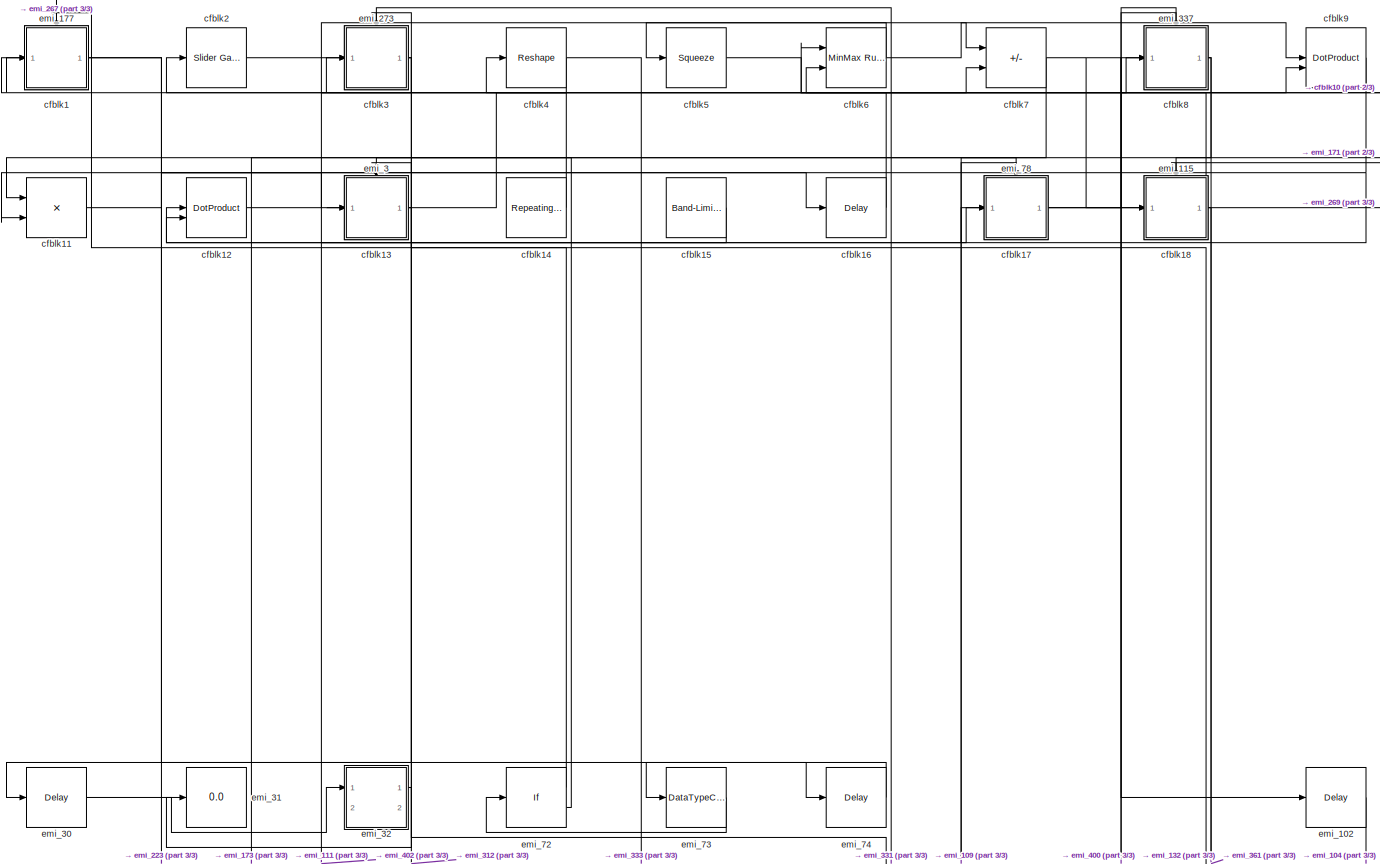
[diagram: root canvas - part 1/3, full width, top band]
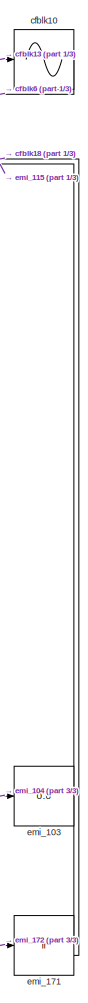
[diagram: root canvas - part 2/3, middle right region]
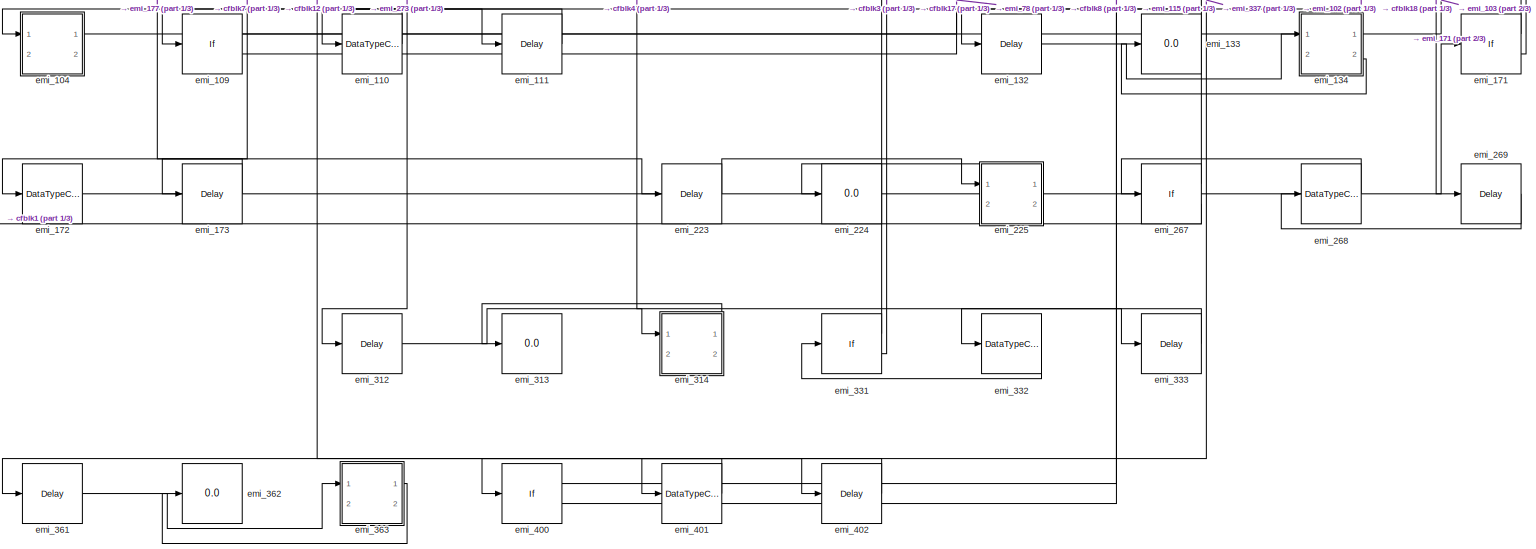
[diagram: root canvas - part 3/3, full width, bottom band]
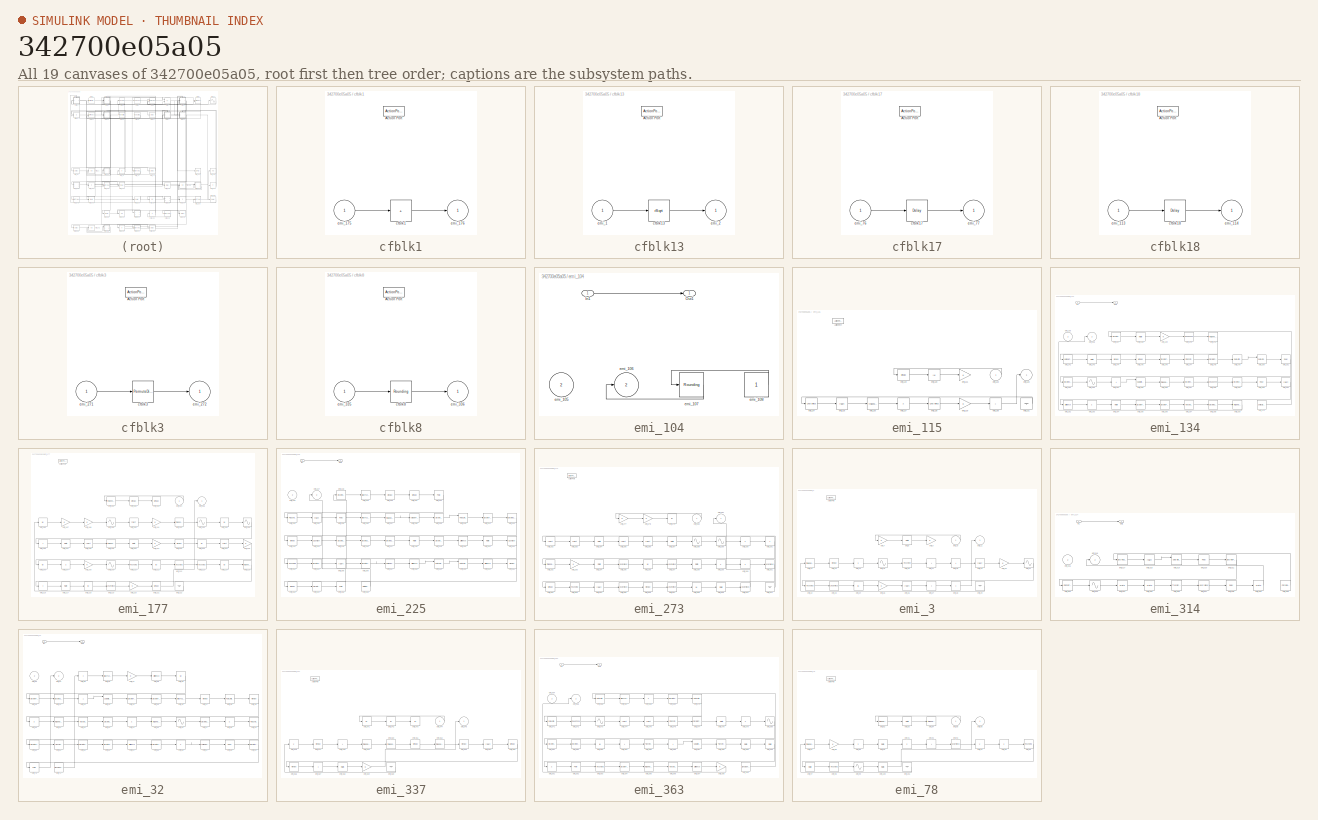
[diagram: thumbnail index - all 19 canvases of the model, root first then tree order]
MODEL slx_342700e05a05
KIND model
CONFIG AbsTol = auto
CONFIG EnableMultiTasking = off
CONFIG FixedStep = auto
CONFIG MaxStep = auto
CONFIG MinStep = auto
CONFIG RelTol = 1e-3
CONFIG SampleTimeConstraint = Unconstrained
CONFIG SolverName = VariableStepAuto
CONFIG StartTime = 0.0
CONFIG StopTime = 10.0
BLOCK [SubSystem] cfblk1
  Ports = [1, 1, 0, 0, 0, 0, 0, 1]
  RequestExecContextInheritance = off
  TreatAsAtomicUnit = on
BLOCK [ActionPort] cfblk1/Action Port
  ActionPortLabel = else
BLOCK [Sum] cfblk1/cfblk1
  IconShape = rectangular
  Inputs = +
  Ports = [1, 1]
BLOCK [Inport] cfblk1/emi_175
BLOCK [Outport] cfblk1/emi_176
BLOCK [Sin] cfblk10
  Ports = [1, 1]
  SampleTime = 0
  TimeSource = Use external signal
BLOCK [Product] cfblk11
  Ports = [2, 1]
BLOCK [DotProduct] cfblk12
  OutDataTypeStr = Inherit: Inherit via internal rule
BLOCK [SubSystem] cfblk13
  Ports = [1, 1, 0, 0, 0, 0, 0, 1]
  RequestExecContextInheritance = off
  TreatAsAtomicUnit = on
BLOCK [ActionPort] cfblk13/Action Port
  ActionPortLabel = else
BLOCK [Sqrt] cfblk13/cfblk13
  AlgorithmType = Newton-Raphson
  Operator = rSqrt
BLOCK [Inport] cfblk13/emi_1
BLOCK [Outport] cfblk13/emi_2
BLOCK [Reference] cfblk14  REF=simulink/Sources/Repeating
Sequence
Stair
  Ports = [0, 1]
  SourceBlock = simulink/Sources/Repeating\nSequence\nStair
  SourceProductBaseCode = SL
  SourceType = Repeating Sequence Stair
BLOCK [Reference] cfblk15  REF=simulink/Sources/Band-Limited
White Noise
  Ports = [0, 1]
  SourceBlock = simulink/Sources/Band-Limited\nWhite Noise
  SourceProductBaseCode = SL
  SourceType = Band-Limited White Noise.
BLOCK [Delay] cfblk16
  InputPortMap = u0
  Ports = [1, 1]
  SampleTime = 1
BLOCK [SubSystem] cfblk17
  Ports = [1, 1, 0, 0, 0, 0, 0, 1]
  RequestExecContextInheritance = off
  TreatAsAtomicUnit = on
BLOCK [ActionPort] cfblk17/Action Port
  ActionPortLabel = else
BLOCK [Delay] cfblk17/cfblk17
  InputPortMap = u0
  Ports = [1, 1]
  SampleTime = 1
BLOCK [Inport] cfblk17/emi_76
BLOCK [Outport] cfblk17/emi_77
BLOCK [SubSystem] cfblk18
  Ports = [1, 1, 0, 0, 0, 0, 0, 1]
  RequestExecContextInheritance = off
  TreatAsAtomicUnit = on
BLOCK [ActionPort] cfblk18/Action Port
  ActionPortLabel = else
BLOCK [Delay] cfblk18/cfblk18
  InputPortMap = u0
  Ports = [1, 1]
  SampleTime = 1
BLOCK [Inport] cfblk18/emi_113
BLOCK [Outport] cfblk18/emi_114
BLOCK [Reference] cfblk2  REF=simulink/Math
Operations/Slider
Gain
  Ports = [1, 1]
  SourceBlock = simulink/Math\nOperations/Slider\nGain
  SourceProductBaseCode = SL
  SourceType = Slider Gain
BLOCK [SubSystem] cfblk3
  Ports = [1, 1, 0, 0, 0, 0, 0, 1]
  RequestExecContextInheritance = off
  TreatAsAtomicUnit = on
BLOCK [ActionPort] cfblk3/Action Port
  ActionPortLabel = else
BLOCK [PermuteDimensions] cfblk3/cfblk3
BLOCK [Inport] cfblk3/emi_271
BLOCK [Outport] cfblk3/emi_272
BLOCK [Reshape] cfblk4
  Ports = [1, 1]
BLOCK [Squeeze] cfblk5
BLOCK [Reference] cfblk6  REF=simulink/Math
Operations/MinMax
Running
Resettable
  Ports = [2, 1]
  SourceBlock = simulink/Math\nOperations/MinMax\nRunning\nResettable
  SourceProductBaseCode = SL
  SourceType = MinMax Running Resettable
BLOCK [Sum] cfblk7
  IconShape = rectangular
  Inputs = +-
  Ports = [2, 1]
BLOCK [SubSystem] cfblk8
  Ports = [1, 1, 0, 0, 0, 0, 0, 1]
  RequestExecContextInheritance = off
  TreatAsAtomicUnit = on
BLOCK [ActionPort] cfblk8/Action Port
  ActionPortLabel = else
BLOCK [Rounding] cfblk8/cfblk8
BLOCK [Inport] cfblk8/emi_335
BLOCK [Outport] cfblk8/emi_336
BLOCK [DotProduct] cfblk9
  OutDataTypeStr = Inherit: Inherit via internal rule
BLOCK [Delay] emi_102
  InputPortMap = u0
  Ports = [1, 1]
  SampleTime = 1
BLOCK [Display] emi_103
  Decimation = 1
  Ports = [1]
BLOCK [SubSystem] emi_104
  Ports = [2, 2]
  RequestExecContextInheritance = off
BLOCK [Inport] emi_104/In1
BLOCK [Outport] emi_104/Out1
BLOCK [Inport] emi_104/emi_105
  Port = 2
BLOCK [Outport] emi_104/emi_106
  Port = 2
BLOCK [Rounding] emi_104/emi_107
BLOCK [Constant] emi_104/emi_108
BLOCK [If] emi_109
  IfExpression = 0 > u1
  Ports = [1, 2]
  SampleTime = 1
BLOCK [DataTypeConversion] emi_110
  OutDataTypeStr = double
  RndMeth = Floor
  SaturateOnIntegerOverflow = off
BLOCK [Delay] emi_111
  InitialCondition = 0
  InputPortMap = u0
  Ports = [1, 1]
BLOCK [SubSystem] emi_115
  Ports = [1, 1, 0, 0, 0, 0, 0, 1]
  RequestExecContextInheritance = off
  TreatAsAtomicUnit = on
BLOCK [ActionPort] emi_115/Action Port
  ActionPortLabel = if(-8.569840e+08 > u1)
BLOCK [MinMax] emi_115/emi_119
  Ports = [1, 1]
  SampleTime = 1
BLOCK [Abs] emi_115/emi_120
  SampleTime = 1
  SaturateOnIntegerOverflow = off
BLOCK [Gain] emi_115/emi_121
  SampleTime = 1
BLOCK [Inport] emi_115/emi_122
BLOCK [Outport] emi_115/emi_123
BLOCK [UnaryMinus] emi_115/emi_124
BLOCK [Sqrt] emi_115/emi_125
  Operator = rSqrt
BLOCK [Trigonometry] emi_115/emi_126
  Ports = [1, 1]
BLOCK [Product] emi_115/emi_127
  Inputs = *
  Ports = [1, 1]
BLOCK [UnaryMinus] emi_115/emi_128
BLOCK [Gain] emi_115/emi_129
BLOCK [Sum] emi_115/emi_130
  IconShape = rectangular
  Inputs = +
  Ports = [1, 1]
BLOCK [Ground] emi_115/emi_131
BLOCK [Delay] emi_132
  InputPortMap = u0
  Ports = [1, 1]
  SampleTime = 1
BLOCK [Display] emi_133
  Decimation = 1
  Ports = [1]
BLOCK [SubSystem] emi_134
  Ports = [2, 2]
  RequestExecContextInheritance = off
BLOCK [Inport] emi_134/In1
BLOCK [Outport] emi_134/Out1
BLOCK [Inport] emi_134/emi_135
  Port = 2
BLOCK [Outport] emi_134/emi_136
  Port = 2
BLOCK [DiscreteIntegrator] emi_134/emi_137
  ICPrevOutput = DiscIntNeverNeededParam
  ICPrevScaledInput = DiscIntNeverNeededParam
  InitialConditionSetting = Auto
  Ports = [1, 1]
  SampleTime = -1
BLOCK [Math] emi_134/emi_138
  Ports = [1, 1]
BLOCK [Gain] emi_134/emi_139
BLOCK [DeadZone] emi_134/emi_140
BLOCK [Trigonometry] emi_134/emi_141
  Ports = [1, 1]
BLOCK [VariablePulseGenerator] emi_134/emi_142
  SampleTime = 0.1
BLOCK [Math] emi_134/emi_143
  Ports = [1, 1]
BLOCK [MinMax] emi_134/emi_144
  Ports = [1, 1]
BLOCK [MinMax] emi_134/emi_145
  Ports = [1, 1]
BLOCK [DiscreteFilter] emi_134/emi_146
  InputPortMap = u0
  Ports = [1, 1]
BLOCK [Reference] emi_134/emi_147  REF=slpidlib/PID Controller
  Ports = [1, 1]
  SourceBlock = slpidlib/PID Controller
  SourceProductBaseCode = SL
  SourceType = PID 1dof
BLOCK [DiscreteZeroPole] emi_134/emi_148
  Gain = 1
  Poles = [0 0.5]
  SampleTime = -1
BLOCK [RateLimiter] emi_134/emi_149
  SampleTimeMode = inherited
BLOCK [Reference] emi_134/emi_150  REF=simulink/Discontinuities/Rate Limiter
Dynamic
  Ports = [3, 1]
  SourceBlock = simulink/Discontinuities/Rate Limiter\nDynamic
  SourceProductBaseCode = SL
  SourceType = Rate Limiter Dynamic
BLOCK [Relay] emi_134/emi_151
BLOCK [DiscreteStateSpace] emi_134/emi_152
  SampleTime = -1
BLOCK [Sin] emi_134/emi_153
  Ports = [1, 1]
  SampleTime = 0
  TimeSource = Use external signal
BLOCK [Sum] emi_134/emi_154
  IconShape = rectangular
  Inputs = +
  Ports = [1, 1]
BLOCK [Reference] emi_134/emi_155  REF=simulink/Discontinuities/Saturation
Dynamic
  Ports = [3, 1]
  SourceBlock = simulink/Discontinuities/Saturation\nDynamic
  SourceProductBaseCode = SL
  SourceType = Saturation Dynamic
BLOCK [Trigonometry] emi_134/emi_156
  Ports = [1, 1]
BLOCK [DiscreteStateSpace] emi_134/emi_157
  SampleTime = -1
BLOCK [DeadZone] emi_134/emi_158
BLOCK [DiscreteZeroPole] emi_134/emi_159
  Gain = 1
  Poles = [0 0.5]
  SampleTime = -1
BLOCK [Relay] emi_134/emi_160
BLOCK [Sqrt] emi_134/emi_161
  Operator = rSqrt
BLOCK [Reference] emi_134/emi_162  REF=simulink/Discrete/Difference
  Ports = [1, 1]
  SourceBlock = simulink/Discrete/Difference
  SourceProductBaseCode = SL
  SourceType = Difference
BLOCK [Product] emi_134/emi_163
  Inputs = *
  Ports = [1, 1]
BLOCK [Math] emi_134/emi_164
  Ports = [1, 1]
BLOCK [DiscreteFir] emi_134/emi_165
  InputPortMap = u0
  OutputPortMap = o0
  Ports = [1, 1]
BLOCK [DiscreteFilter] emi_134/emi_166
  InputPortMap = u0
  Ports = [1, 1]
BLOCK [Reference] emi_134/emi_167  REF=simulink/Discrete/Transfer Fcn
First Order
  Ports = [1, 1]
  SourceBlock = simulink/Discrete/Transfer Fcn\nFirst Order
  SourceProductBaseCode = SL
  SourceType = First Order Transfer Fcn
BLOCK [DiscreteZeroPole] emi_134/emi_168
  Gain = 1
  Poles = [0 0.5]
  SampleTime = -1
BLOCK [Trigonometry] emi_134/emi_169
  Ports = [1, 1]
BLOCK [Reference] emi_134/emi_170  REF=simulink/Sources/Chirp Signal
  Ports = [0, 1]
  SourceBlock = simulink/Sources/Chirp Signal
  SourceProductBaseCode = SL
  SourceType = chirp
BLOCK [If] emi_171
  IfExpression = -8.569840e+08 > u1
  Ports = [1, 2]
  SampleTime = 1
BLOCK [DataTypeConversion] emi_172
  OutDataTypeStr = double
  RndMeth = Floor
  SaturateOnIntegerOverflow = off
BLOCK [Delay] emi_173
  InitialCondition = -428491998.3632
  InputPortMap = u0
  Ports = [1, 1]
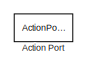
[diagram: emi_177 - part 1/2, top left region]
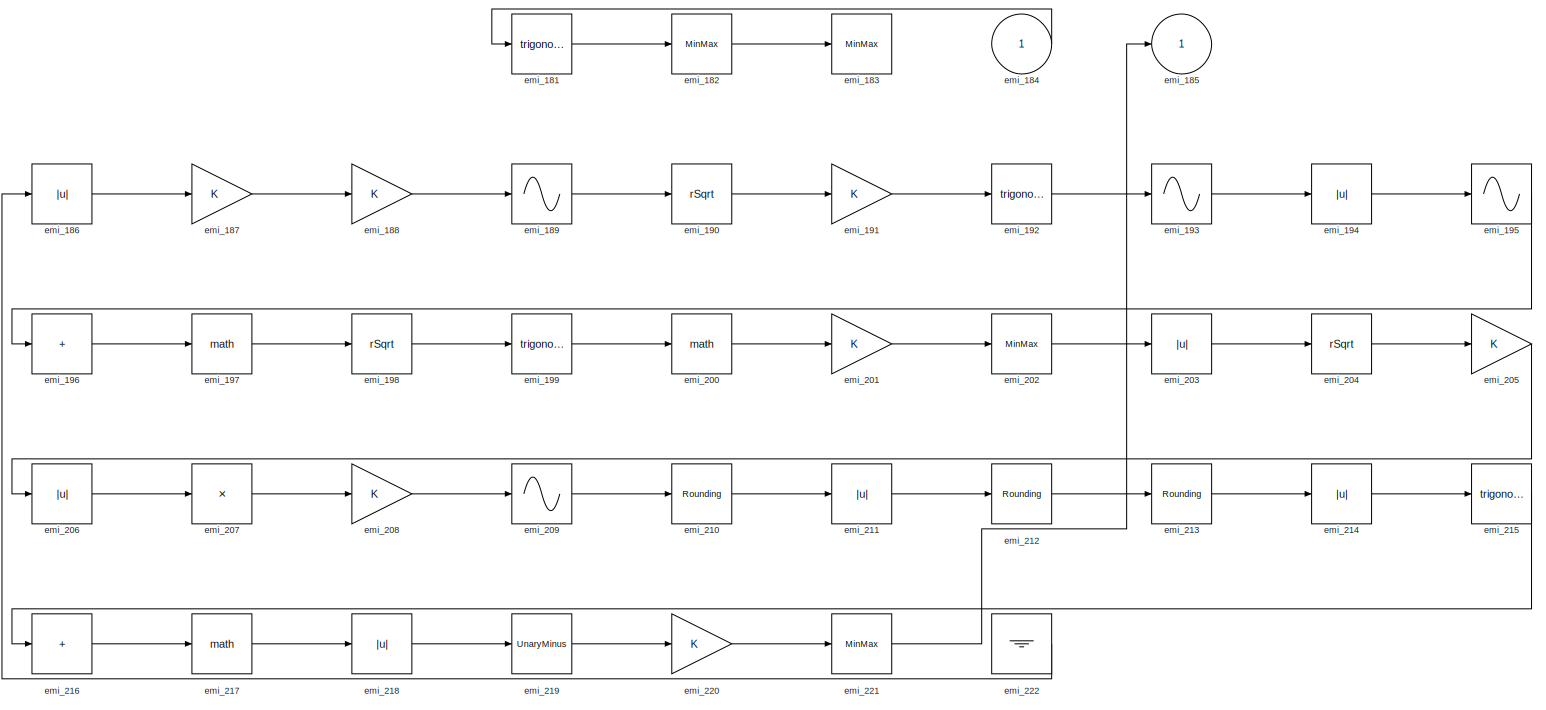
[diagram: emi_177 - part 2/2, full width, middle band]
BLOCK [SubSystem] emi_177
  Ports = [1, 1, 0, 0, 0, 0, 0, 1]
  RequestExecContextInheritance = off
  TreatAsAtomicUnit = on
BLOCK [ActionPort] emi_177/Action Port
  ActionPortLabel = if(-8.569840e+08 > u1)
BLOCK [Trigonometry] emi_177/emi_181
  Ports = [1, 1]
BLOCK [MinMax] emi_177/emi_182
  Ports = [1, 1]
BLOCK [MinMax] emi_177/emi_183
  Ports = [1, 1]
BLOCK [Inport] emi_177/emi_184
BLOCK [Outport] emi_177/emi_185
BLOCK [Abs] emi_177/emi_186
  SaturateOnIntegerOverflow = off
BLOCK [Gain] emi_177/emi_187
BLOCK [Gain] emi_177/emi_188
BLOCK [Sin] emi_177/emi_189
  Ports = [1, 1]
  SampleTime = 0
  TimeSource = Use external signal
BLOCK [Sqrt] emi_177/emi_190
  Operator = rSqrt
BLOCK [Gain] emi_177/emi_191
BLOCK [Trigonometry] emi_177/emi_192
  Ports = [1, 1]
BLOCK [Sin] emi_177/emi_193
  Ports = [1, 1]
  SampleTime = 0
  TimeSource = Use external signal
BLOCK [Abs] emi_177/emi_194
  SaturateOnIntegerOverflow = off
BLOCK [Sin] emi_177/emi_195
  Ports = [1, 1]
  SampleTime = 0
  TimeSource = Use external signal
BLOCK [Sum] emi_177/emi_196
  IconShape = rectangular
  Inputs = +
  Ports = [1, 1]
BLOCK [Math] emi_177/emi_197
  Ports = [1, 1]
BLOCK [Sqrt] emi_177/emi_198
  Operator = rSqrt
BLOCK [Trigonometry] emi_177/emi_199
  Ports = [1, 1]
BLOCK [Math] emi_177/emi_200
  Ports = [1, 1]
BLOCK [Gain] emi_177/emi_201
BLOCK [MinMax] emi_177/emi_202
  Ports = [1, 1]
BLOCK [Abs] emi_177/emi_203
  SaturateOnIntegerOverflow = off
BLOCK [Sqrt] emi_177/emi_204
  Operator = rSqrt
BLOCK [Gain] emi_177/emi_205
BLOCK [Abs] emi_177/emi_206
  SaturateOnIntegerOverflow = off
BLOCK [Product] emi_177/emi_207
  Inputs = *
  Ports = [1, 1]
BLOCK [Gain] emi_177/emi_208
BLOCK [Sin] emi_177/emi_209
  Ports = [1, 1]
  SampleTime = 0
  TimeSource = Use external signal
BLOCK [Rounding] emi_177/emi_210
BLOCK [Abs] emi_177/emi_211
  SaturateOnIntegerOverflow = off
BLOCK [Rounding] emi_177/emi_212
BLOCK [Rounding] emi_177/emi_213
BLOCK [Abs] emi_177/emi_214
  SaturateOnIntegerOverflow = off
BLOCK [Trigonometry] emi_177/emi_215
  Ports = [1, 1]
BLOCK [Sum] emi_177/emi_216
  IconShape = rectangular
  Inputs = +
  Ports = [1, 1]
BLOCK [Math] emi_177/emi_217
  Ports = [1, 1]
BLOCK [Abs] emi_177/emi_218
  SaturateOnIntegerOverflow = off
BLOCK [UnaryMinus] emi_177/emi_219
BLOCK [Gain] emi_177/emi_220
BLOCK [MinMax] emi_177/emi_221
  Ports = [1, 1]
BLOCK [Ground] emi_177/emi_222
BLOCK [Delay] emi_223
  InputPortMap = u0
  Ports = [1, 1]
BLOCK [Display] emi_224
  Decimation = 1
  Ports = [1]
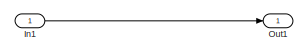
[diagram: emi_225 - part 1/2, top left region]
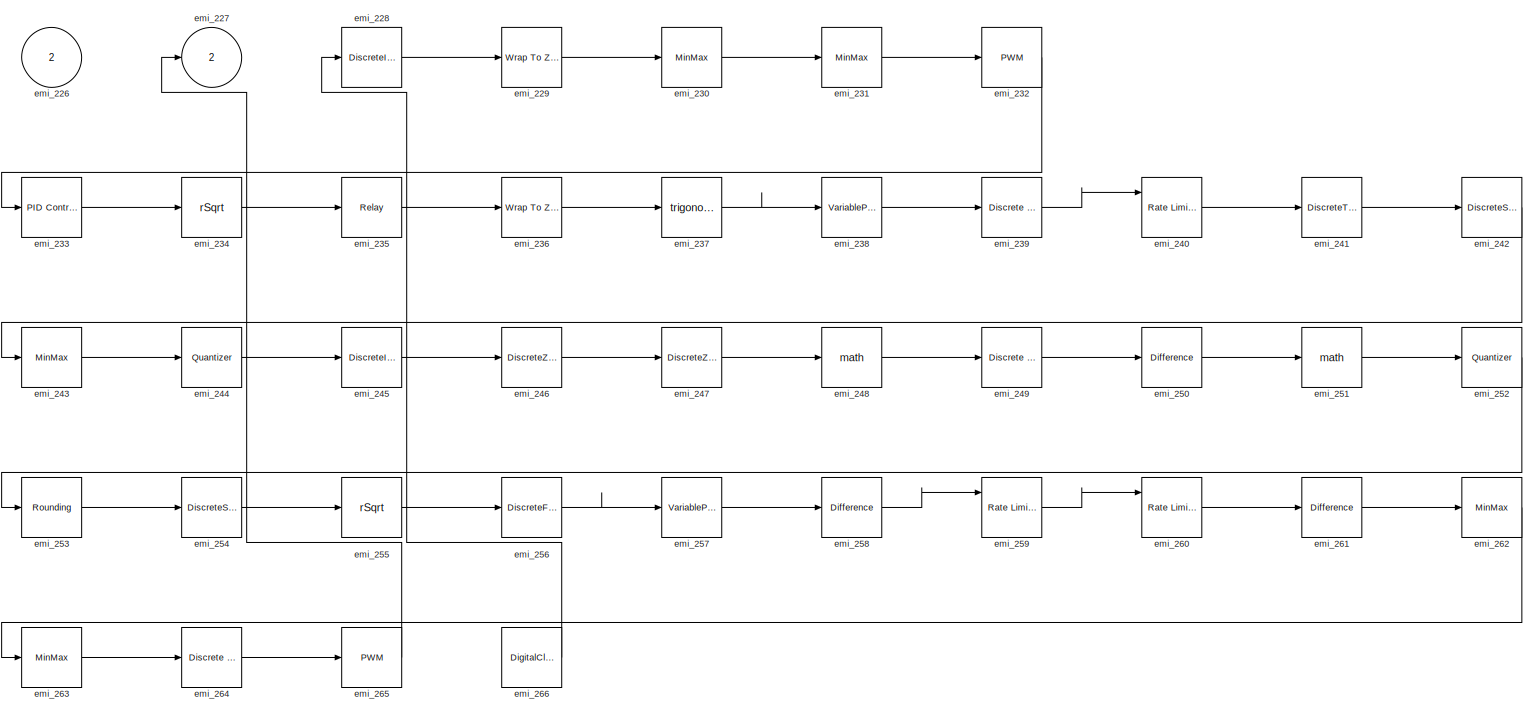
[diagram: emi_225 - part 2/2, most of the canvas]
BLOCK [SubSystem] emi_225
  Ports = [2, 2]
  RequestExecContextInheritance = off
BLOCK [Inport] emi_225/In1
BLOCK [Outport] emi_225/Out1
BLOCK [Inport] emi_225/emi_226
  Port = 2
BLOCK [Outport] emi_225/emi_227
  Port = 2
BLOCK [DiscreteIntegrator] emi_225/emi_228
  ICPrevOutput = DiscIntNeverNeededParam
  ICPrevScaledInput = DiscIntNeverNeededParam
  InitialConditionSetting = Auto
  Ports = [1, 1]
  SampleTime = -1
BLOCK [Reference] emi_225/emi_229  REF=simulink/Discontinuities/Wrap To Zero
  Ports = [1, 1]
  SourceBlock = simulink/Discontinuities/Wrap To Zero
  SourceProductBaseCode = SL
  SourceType = Wrap To Zero
BLOCK [MinMax] emi_225/emi_230
  Ports = [1, 1]
BLOCK [MinMax] emi_225/emi_231
  Ports = [1, 1]
BLOCK [Reference] emi_225/emi_232  REF=simulink/Discontinuities/PWM
  DisableCoverage = on
  Ports = [1, 1]
  SourceBlock = simulink/Discontinuities/PWM
  SourceProductBaseCode = SL
  SourceType = PWM
BLOCK [Reference] emi_225/emi_233  REF=slpidlib/PID Controller
  Ports = [1, 1]
  SourceBlock = slpidlib/PID Controller
  SourceProductBaseCode = SL
  SourceType = PID 1dof
BLOCK [Sqrt] emi_225/emi_234
  Operator = rSqrt
BLOCK [Relay] emi_225/emi_235
BLOCK [Reference] emi_225/emi_236  REF=simulink/Discontinuities/Wrap To Zero
  Ports = [1, 1]
  SourceBlock = simulink/Discontinuities/Wrap To Zero
  SourceProductBaseCode = SL
  SourceType = Wrap To Zero
BLOCK [Trigonometry] emi_225/emi_237
  Ports = [1, 1]
BLOCK [VariablePulseGenerator] emi_225/emi_238
  SampleTime = 0.1
BLOCK [Reference] emi_225/emi_239  REF=simulink/Discrete/Discrete Derivative
  Ports = [1, 1]
  SourceBlock = simulink/Discrete/Discrete Derivative
  SourceProductBaseCode = SL
  SourceType = Discrete Derivative
BLOCK [Reference] emi_225/emi_240  REF=simulink/Discontinuities/Rate Limiter
Dynamic
  Ports = [3, 1]
  SourceBlock = simulink/Discontinuities/Rate Limiter\nDynamic
  SourceProductBaseCode = SL
  SourceType = Rate Limiter Dynamic
BLOCK [DiscreteTransferFcn] emi_225/emi_241
  InputPortMap = u0
  Ports = [1, 1]
BLOCK [DiscreteStateSpace] emi_225/emi_242
  SampleTime = -1
BLOCK [MinMax] emi_225/emi_243
  Ports = [1, 1]
BLOCK [Quantizer] emi_225/emi_244
BLOCK [DiscreteIntegrator] emi_225/emi_245
  ICPrevOutput = DiscIntNeverNeededParam
  ICPrevScaledInput = DiscIntNeverNeededParam
  InitialConditionSetting = Auto
  Ports = [1, 1]
  SampleTime = -1
BLOCK [DiscreteZeroPole] emi_225/emi_246
  Gain = 1
  Poles = [0 0.5]
  SampleTime = -1
BLOCK [DiscreteZeroPole] emi_225/emi_247
  Gain = 1
  Poles = [0 0.5]
  SampleTime = -1
BLOCK [Math] emi_225/emi_248
  Ports = [1, 1]
BLOCK [Reference] emi_225/emi_249  REF=simulink/Discrete/Discrete Derivative
  Ports = [1, 1]
  SourceBlock = simulink/Discrete/Discrete Derivative
  SourceProductBaseCode = SL
  SourceType = Discrete Derivative
BLOCK [Reference] emi_225/emi_250  REF=simulink/Discrete/Difference
  Ports = [1, 1]
  SourceBlock = simulink/Discrete/Difference
  SourceProductBaseCode = SL
  SourceType = Difference
BLOCK [Math] emi_225/emi_251
  Ports = [1, 1]
BLOCK [Quantizer] emi_225/emi_252
BLOCK [Rounding] emi_225/emi_253
BLOCK [DiscreteStateSpace] emi_225/emi_254
  SampleTime = -1
BLOCK [Sqrt] emi_225/emi_255
  Operator = rSqrt
BLOCK [DiscreteFilter] emi_225/emi_256
  InputPortMap = u0
  Ports = [1, 1]
BLOCK [VariablePulseGenerator] emi_225/emi_257
  SampleTime = 0.1
BLOCK [Reference] emi_225/emi_258  REF=simulink/Discrete/Difference
  Ports = [1, 1]
  SourceBlock = simulink/Discrete/Difference
  SourceProductBaseCode = SL
  SourceType = Difference
BLOCK [Reference] emi_225/emi_259  REF=simulink/Discontinuities/Rate Limiter
Dynamic
  Ports = [3, 1]
  SourceBlock = simulink/Discontinuities/Rate Limiter\nDynamic
  SourceProductBaseCode = SL
  SourceType = Rate Limiter Dynamic
BLOCK [Reference] emi_225/emi_260  REF=simulink/Discontinuities/Rate Limiter
Dynamic
  Ports = [3, 1]
  SourceBlock = simulink/Discontinuities/Rate Limiter\nDynamic
  SourceProductBaseCode = SL
  SourceType = Rate Limiter Dynamic
BLOCK [Reference] emi_225/emi_261  REF=simulink/Discrete/Difference
  Ports = [1, 1]
  SourceBlock = simulink/Discrete/Difference
  SourceProductBaseCode = SL
  SourceType = Difference
BLOCK [MinMax] emi_225/emi_262
  Ports = [1, 1]
BLOCK [MinMax] emi_225/emi_263
  Ports = [1, 1]
BLOCK [Reference] emi_225/emi_264  REF=simulink/Discrete/Discrete Derivative
  Ports = [1, 1]
  SourceBlock = simulink/Discrete/Discrete Derivative
  SourceProductBaseCode = SL
  SourceType = Discrete Derivative
BLOCK [Reference] emi_225/emi_265  REF=simulink/Discontinuities/PWM
  DisableCoverage = on
  Ports = [1, 1]
  SourceBlock = simulink/Discontinuities/PWM
  SourceProductBaseCode = SL
  SourceType = PWM
BLOCK [DigitalClock] emi_225/emi_266
BLOCK [If] emi_267
  IfExpression = -8.569840e+08 > u1
  Ports = [1, 2]
BLOCK [DataTypeConversion] emi_268
  OutDataTypeStr = double
  RndMeth = Floor
  SaturateOnIntegerOverflow = off
BLOCK [Delay] emi_269
  InitialCondition = -428491998.3632
  InputPortMap = u0
  Ports = [1, 1]
BLOCK [SubSystem] emi_273
  Ports = [1, 1, 0, 0, 0, 0, 0, 1]
  RequestExecContextInheritance = off
  TreatAsAtomicUnit = on
BLOCK [ActionPort] emi_273/Action Port
  ActionPortLabel = if(-8.569840e+08 > u1)
BLOCK [Gain] emi_273/emi_277
BLOCK [Gain] emi_273/emi_278
BLOCK [Abs] emi_273/emi_279
  SaturateOnIntegerOverflow = off
BLOCK [Inport] emi_273/emi_280
BLOCK [Outport] emi_273/emi_281
BLOCK [Sqrt] emi_273/emi_282
  Operator = rSqrt
BLOCK [Sqrt] emi_273/emi_283
  Operator = rSqrt
BLOCK [Math] emi_273/emi_284
  Ports = [1, 1]
BLOCK [Sqrt] emi_273/emi_285
  Operator = rSqrt
BLOCK [Sqrt] emi_273/emi_286
  Operator = rSqrt
BLOCK [Math] emi_273/emi_287
  Ports = [1, 1]
BLOCK [Sin] emi_273/emi_288
  Ports = [1, 1]
  SampleTime = 0
  TimeSource = Use external signal
BLOCK [Sin] emi_273/emi_289
  Ports = [1, 1]
  SampleTime = 0
  TimeSource = Use external signal
BLOCK [Product] emi_273/emi_290
  Inputs = *
  Ports = [1, 1]
BLOCK [Sum] emi_273/emi_291
  IconShape = rectangular
  Inputs = +
  Ports = [1, 1]
BLOCK [Trigonometry] emi_273/emi_292
  Ports = [1, 1]
BLOCK [Gain] emi_273/emi_293
BLOCK [Math] emi_273/emi_294
  Ports = [1, 1]
BLOCK [UnaryMinus] emi_273/emi_295
BLOCK [Abs] emi_273/emi_296
  SaturateOnIntegerOverflow = off
BLOCK [UnaryMinus] emi_273/emi_297
BLOCK [Math] emi_273/emi_298
  Ports = [1, 1]
BLOCK [Product] emi_273/emi_299
  Inputs = *
  Ports = [1, 1]
BLOCK [Product] emi_273/emi_300
  Inputs = *
  Ports = [1, 1]
BLOCK [UnaryMinus] emi_273/emi_301
BLOCK [MinMax] emi_273/emi_302
  Ports = [1, 1]
BLOCK [Rounding] emi_273/emi_303
BLOCK [Sqrt] emi_273/emi_304
  Operator = rSqrt
BLOCK [UnaryMinus] emi_273/emi_305
BLOCK [MinMax] emi_273/emi_306
  Ports = [1, 1]
BLOCK [UnaryMinus] emi_273/emi_307
BLOCK [Abs] emi_273/emi_308
  SaturateOnIntegerOverflow = off
BLOCK [Math] emi_273/emi_309
  Ports = [1, 1]
BLOCK [UnaryMinus] emi_273/emi_310
BLOCK [Ground] emi_273/emi_311
BLOCK [SubSystem] emi_3
  Ports = [1, 1, 0, 0, 0, 0, 0, 1]
  RequestExecContextInheritance = off
  TreatAsAtomicUnit = on
BLOCK [ActionPort] emi_3/Action Port
  ActionPortLabel = if(-8.569840e+08 > u1)
BLOCK [Inport] emi_3/emi_10
BLOCK [Outport] emi_3/emi_11
BLOCK [Trigonometry] emi_3/emi_12
  Ports = [1, 1]
BLOCK [MinMax] emi_3/emi_13
  Ports = [1, 1]
BLOCK [Product] emi_3/emi_14
  Inputs = *
  Ports = [1, 1]
BLOCK [Sin] emi_3/emi_15
  Ports = [1, 1]
  SampleTime = 0
  TimeSource = Use external signal
BLOCK [Rounding] emi_3/emi_16
BLOCK [Sum] emi_3/emi_17
  IconShape = rectangular
  Inputs = +
  Ports = [1, 1]
BLOCK [Sum] emi_3/emi_18
  IconShape = rectangular
  Inputs = +
  Ports = [1, 1]
BLOCK [Sqrt] emi_3/emi_19
  Operator = rSqrt
BLOCK [Gain] emi_3/emi_20
BLOCK [Sin] emi_3/emi_21
  Ports = [1, 1]
  SampleTime = 0
  TimeSource = Use external signal
BLOCK [Rounding] emi_3/emi_22
BLOCK [UnaryMinus] emi_3/emi_23
BLOCK [Abs] emi_3/emi_24
  SaturateOnIntegerOverflow = off
BLOCK [Gain] emi_3/emi_25
BLOCK [Sqrt] emi_3/emi_26
  Operator = rSqrt
BLOCK [Sum] emi_3/emi_27
  IconShape = rectangular
  Inputs = +
  Ports = [1, 1]
BLOCK [Sum] emi_3/emi_28
  IconShape = rectangular
  Inputs = +
  Ports = [1, 1]
BLOCK [Ground] emi_3/emi_29
BLOCK [Gain] emi_3/emi_7
BLOCK [Math] emi_3/emi_8
  Ports = [1, 1]
BLOCK [Gain] emi_3/emi_9
BLOCK [Delay] emi_30
  InputPortMap = u0
  Ports = [1, 1]
  SampleTime = 1
BLOCK [Display] emi_31
  Decimation = 1
  Ports = [1]
BLOCK [Delay] emi_312
  InputPortMap = u0
  Ports = [1, 1]
BLOCK [Display] emi_313
  Decimation = 1
  Ports = [1]
BLOCK [SubSystem] emi_314
  Ports = [2, 2]
  RequestExecContextInheritance = off
BLOCK [Inport] emi_314/In1
BLOCK [Outport] emi_314/Out1
BLOCK [Inport] emi_314/emi_315
  Port = 2
BLOCK [Outport] emi_314/emi_316
  Port = 2
BLOCK [DiscreteZeroPole] emi_314/emi_317
  Gain = 1
  Poles = [0 0.5]
  SampleTime = -1
BLOCK [Sqrt] emi_314/emi_318
  Operator = rSqrt
BLOCK [Reference] emi_314/emi_319  REF=simulink/Discontinuities/Saturation
Dynamic
  Ports = [3, 1]
  SourceBlock = simulink/Discontinuities/Saturation\nDynamic
  SourceProductBaseCode = SL
  SourceType = Saturation Dynamic
BLOCK [Relay] emi_314/emi_320
BLOCK [DiscreteFilter] emi_314/emi_321
  InputPortMap = u0
  Ports = [1, 1]
BLOCK [Reference] emi_314/emi_322  REF=slpidlib/PID Controller
  Ports = [1, 1]
  SourceBlock = slpidlib/PID Controller
  SourceProductBaseCode = SL
  SourceType = PID 1dof
BLOCK [Sin] emi_314/emi_323
  Ports = [1, 1]
  SampleTime = 0
  TimeSource = Use external signal
BLOCK [Math] emi_314/emi_324
  Ports = [1, 1]
BLOCK [Math] emi_314/emi_325
  Ports = [1, 1]
BLOCK [Reference] emi_314/emi_326  REF=simulink/Discrete/Transfer Fcn
First Order
  Ports = [1, 1]
  SourceBlock = simulink/Discrete/Transfer Fcn\nFirst Order
  SourceProductBaseCode = SL
  SourceType = First Order Transfer Fcn
BLOCK [UnaryMinus] emi_314/emi_327
BLOCK [Relay] emi_314/emi_328
BLOCK [Math] emi_314/emi_329
  Ports = [1, 1]
BLOCK [Reference] emi_314/emi_330  REF=simulink/Sources/Chirp Signal
  Ports = [0, 1]
  SourceBlock = simulink/Sources/Chirp Signal
  SourceProductBaseCode = SL
  SourceType = chirp
BLOCK [SubSystem] emi_32
  Ports = [2, 2]
  RequestExecContextInheritance = off
BLOCK [Inport] emi_32/In1
BLOCK [Outport] emi_32/Out1
BLOCK [Inport] emi_32/emi_33
  Port = 2
BLOCK [Outport] emi_32/emi_34
  Port = 2
BLOCK [Sum] emi_32/emi_35
  IconShape = rectangular
  Inputs = +
  Ports = [1, 1]
BLOCK [Reference] emi_32/emi_36  REF=simulink/Discontinuities/Wrap To Zero
  Ports = [1, 1]
  SourceBlock = simulink/Discontinuities/Wrap To Zero
  SourceProductBaseCode = SL
  SourceType = Wrap To Zero
BLOCK [Gain] emi_32/emi_37
BLOCK [Reference] emi_32/emi_38  REF=simulink/Discrete/Difference
  Ports = [1, 1]
  SourceBlock = simulink/Discrete/Difference
  SourceProductBaseCode = SL
  SourceType = Difference
BLOCK [Abs] emi_32/emi_39
  SaturateOnIntegerOverflow = off
BLOCK [DiscreteFilter] emi_32/emi_40
  InputPortMap = u0
  Ports = [1, 1]
BLOCK [DiscreteStateSpace] emi_32/emi_41
  SampleTime = -1
BLOCK [Sum] emi_32/emi_42
  IconShape = rectangular
  Inputs = +
  Ports = [1, 1]
BLOCK [Reference] emi_32/emi_43  REF=simulink/Discontinuities/Saturation
Dynamic
  Ports = [3, 1]
  SourceBlock = simulink/Discontinuities/Saturation\nDynamic
  SourceProductBaseCode = SL
  SourceType = Saturation Dynamic
BLOCK [DiscreteTransferFcn] emi_32/emi_44
  InputPortMap = u0
  Ports = [1, 1]
BLOCK [DiscreteFilter] emi_32/emi_45
  InputPortMap = u0
  Ports = [1, 1]
BLOCK [Reference] emi_32/emi_46  REF=simulink/Discontinuities/Wrap To Zero
  Ports = [1, 1]
  SourceBlock = simulink/Discontinuities/Wrap To Zero
  SourceProductBaseCode = SL
  SourceType = Wrap To Zero
BLOCK [MinMax] emi_32/emi_47
  Ports = [1, 1]
BLOCK [RateLimiter] emi_32/emi_48
  SampleTimeMode = inherited
BLOCK [MinMax] emi_32/emi_49
  Ports = [1, 1]
BLOCK [Product] emi_32/emi_50
  Inputs = *
  Ports = [1, 1]
BLOCK [Trigonometry] emi_32/emi_51
  Ports = [1, 1]
BLOCK [Reference] emi_32/emi_52  REF=simulink/Discrete/Transfer Fcn
First Order
  Ports = [1, 1]
  SourceBlock = simulink/Discrete/Transfer Fcn\nFirst Order
  SourceProductBaseCode = SL
  SourceType = First Order Transfer Fcn
BLOCK [DiscreteIntegrator] emi_32/emi_53
  ICPrevOutput = DiscIntNeverNeededParam
  ICPrevScaledInput = DiscIntNeverNeededParam
  InitialConditionSetting = Auto
  Ports = [1, 1]
  SampleTime = -1
BLOCK [Product] emi_32/emi_54
  Inputs = *
  Ports = [1, 1]
BLOCK [Trigonometry] emi_32/emi_55
  Ports = [1, 1]
BLOCK [Sin] emi_32/emi_56
  Ports = [1, 1]
  SampleTime = 0
  TimeSource = Use external signal
BLOCK [DiscreteZeroPole] emi_32/emi_57
  Gain = 1
  Poles = [0 0.5]
  SampleTime = -1
BLOCK [Product] emi_32/emi_58
  Inputs = *
  Ports = [1, 1]
BLOCK [Reference] emi_32/emi_59  REF=slpidlib/PID Controller
  Ports = [1, 1]
  SourceBlock = slpidlib/PID Controller
  SourceProductBaseCode = SL
  SourceType = PID 1dof
BLOCK [DiscreteStateSpace] emi_32/emi_60
  SampleTime = -1
BLOCK [Reference] emi_32/emi_61  REF=simulink/Discrete/Transfer Fcn
First Order
  Ports = [1, 1]
  SourceBlock = simulink/Discrete/Transfer Fcn\nFirst Order
  SourceProductBaseCode = SL
  SourceType = First Order Transfer Fcn
BLOCK [DiscreteStateSpace] emi_32/emi_62
  SampleTime = -1
BLOCK [DiscreteZeroPole] emi_32/emi_63
  Gain = 1
  Poles = [0 0.5]
  SampleTime = -1
BLOCK [Reference] emi_32/emi_64  REF=simulink/Discrete/Difference
  Ports = [1, 1]
  SourceBlock = simulink/Discrete/Difference
  SourceProductBaseCode = SL
  SourceType = Difference
BLOCK [DiscreteZeroPole] emi_32/emi_65
  Gain = 1
  Poles = [0 0.5]
  SampleTime = -1
BLOCK [Product] emi_32/emi_66
  Inputs = *
  Ports = [1, 1]
BLOCK [VariablePulseGenerator] emi_32/emi_67
  SampleTime = 0.1
BLOCK [Relay] emi_32/emi_68
BLOCK [DiscreteTransferFcn] emi_32/emi_69
  InputPortMap = u0
  Ports = [1, 1]
BLOCK [Reference] emi_32/emi_70  REF=simulink/Discontinuities/PWM
  DisableCoverage = on
  Ports = [1, 1]
  SourceBlock = simulink/Discontinuities/PWM
  SourceProductBaseCode = SL
  SourceType = PWM
BLOCK [SignalGenerator] emi_32/emi_71
  Ports = [0, 1]
  Units = rad/sec
BLOCK [If] emi_331
  IfExpression = -8.569840e+08 > u1
  Ports = [1, 2]
BLOCK [DataTypeConversion] emi_332
  OutDataTypeStr = double
  RndMeth = Floor
  SaturateOnIntegerOverflow = off
BLOCK [Delay] emi_333
  InitialCondition = -428491998.3632
  InputPortMap = u0
  Ports = [1, 1]
BLOCK [SubSystem] emi_337
  Ports = [1, 1, 0, 0, 0, 0, 0, 1]
  RequestExecContextInheritance = off
  TreatAsAtomicUnit = on
BLOCK [ActionPort] emi_337/Action Port
  ActionPortLabel = if(0 > u1)
BLOCK [Abs] emi_337/emi_341
  SaturateOnIntegerOverflow = off
BLOCK [Abs] emi_337/emi_342
  SaturateOnIntegerOverflow = off
BLOCK [Abs] emi_337/emi_343
  SaturateOnIntegerOverflow = off
BLOCK [Inport] emi_337/emi_344
BLOCK [Outport] emi_337/emi_345
BLOCK [Product] emi_337/emi_346
  Inputs = *
  Ports = [1, 1]
BLOCK [MinMax] emi_337/emi_347
  Ports = [1, 1]
BLOCK [Sum] emi_337/emi_348
  IconShape = rectangular
  Inputs = +
  Ports = [1, 1]
BLOCK [Trigonometry] emi_337/emi_349
  Ports = [1, 1]
BLOCK [Trigonometry] emi_337/emi_350
  Ports = [1, 1]
BLOCK [MinMax] emi_337/emi_351
  Ports = [1, 1]
BLOCK [Trigonometry] emi_337/emi_352
  Ports = [1, 1]
BLOCK [MinMax] emi_337/emi_353
  Ports = [1, 1]
BLOCK [Sqrt] emi_337/emi_354
  Operator = rSqrt
BLOCK [MinMax] emi_337/emi_355
  Ports = [1, 1]
BLOCK [MinMax] emi_337/emi_356
  Ports = [1, 1]
BLOCK [Sum] emi_337/emi_357
  IconShape = rectangular
  Inputs = +
  Ports = [1, 1]
BLOCK [Math] emi_337/emi_358
  Ports = [1, 1]
BLOCK [Gain] emi_337/emi_359
BLOCK [Ground] emi_337/emi_360
BLOCK [Delay] emi_361
  InputPortMap = u0
  Ports = [1, 1]
  SampleTime = 1
BLOCK [Display] emi_362
  Decimation = 1
  Ports = [1]
BLOCK [SubSystem] emi_363
  Ports = [2, 2]
  RequestExecContextInheritance = off
BLOCK [Inport] emi_363/In1
BLOCK [Outport] emi_363/Out1
BLOCK [Inport] emi_363/emi_364
  Port = 2
BLOCK [Outport] emi_363/emi_365
  Port = 2
BLOCK [RateLimiter] emi_363/emi_366
  SampleTimeMode = inherited
BLOCK [Reference] emi_363/emi_367  REF=simulink/Discontinuities/Wrap To Zero
  Ports = [1, 1]
  SourceBlock = simulink/Discontinuities/Wrap To Zero
  SourceProductBaseCode = SL
  SourceType = Wrap To Zero
BLOCK [Product] emi_363/emi_368
  Inputs = *
  Ports = [1, 1]
BLOCK [DiscreteStateSpace] emi_363/emi_369
  SampleTime = -1
BLOCK [RateLimiter] emi_363/emi_370
  SampleTimeMode = inherited
BLOCK [RateLimiter] emi_363/emi_371
  SampleTimeMode = inherited
BLOCK [DeadZone] emi_363/emi_372
BLOCK [Sin] emi_363/emi_373
  Ports = [1, 1]
  SampleTime = 0
  TimeSource = Use external signal
BLOCK [Sqrt] emi_363/emi_374
  Operator = rSqrt
BLOCK [Sqrt] emi_363/emi_375
  Operator = rSqrt
BLOCK [Reference] emi_363/emi_376  REF=slpidlib/PID Controller
  Ports = [1, 1]
  SourceBlock = slpidlib/PID Controller
  SourceProductBaseCode = SL
  SourceType = PID 1dof
BLOCK [DiscreteFir] emi_363/emi_377
  InputPortMap = u0
  OutputPortMap = o0
  Ports = [1, 1]
BLOCK [Math] emi_363/emi_378
  Ports = [1, 1]
BLOCK [Product] emi_363/emi_379
  Inputs = *
  Ports = [1, 1]
BLOCK [Sin] emi_363/emi_380
  Ports = [1, 1]
  SampleTime = 0
  TimeSource = Use external signal
BLOCK [DiscreteIntegrator] emi_363/emi_381
  ICPrevOutput = DiscIntNeverNeededParam
  ICPrevScaledInput = DiscIntNeverNeededParam
  InitialConditionSetting = Auto
  Ports = [1, 1]
  SampleTime = -1
BLOCK [DiscreteZeroPole] emi_363/emi_382
  Gain = 1
  Poles = [0 0.5]
  SampleTime = -1
BLOCK [Abs] emi_363/emi_383
  SaturateOnIntegerOverflow = off
BLOCK [Sum] emi_363/emi_384
  IconShape = rectangular
  Inputs = +
  Ports = [1, 1]
BLOCK [Reference] emi_363/emi_385  REF=simulink/Discrete/Transfer Fcn
First Order
  Ports = [1, 1]
  SourceBlock = simulink/Discrete/Transfer Fcn\nFirst Order
  SourceProductBaseCode = SL
  SourceType = First Order Transfer Fcn
BLOCK [Sum] emi_363/emi_386
  IconShape = rectangular
  Inputs = +
  Ports = [1, 1]
BLOCK [Reference] emi_363/emi_387  REF=simulink/Discontinuities/Saturation
Dynamic
  Ports = [3, 1]
  SourceBlock = simulink/Discontinuities/Saturation\nDynamic
  SourceProductBaseCode = SL
  SourceType = Saturation Dynamic
BLOCK [Reference] emi_363/emi_388  REF=simulink/Discrete/Transfer Fcn
First Order
  Ports = [1, 1]
  SourceBlock = simulink/Discrete/Transfer Fcn\nFirst Order
  SourceProductBaseCode = SL
  SourceType = First Order Transfer Fcn
BLOCK [Math] emi_363/emi_389
  Ports = [1, 1]
BLOCK [Math] emi_363/emi_390
  Ports = [1, 1]
BLOCK [Product] emi_363/emi_391
  Inputs = *
  Ports = [1, 1]
BLOCK [Reference] emi_363/emi_392  REF=simulink/Discontinuities/PWM
  DisableCoverage = on
  Ports = [1, 1]
  SourceBlock = simulink/Discontinuities/PWM
  SourceProductBaseCode = SL
  SourceType = PWM
BLOCK [Rounding] emi_363/emi_393
BLOCK [DiscreteFir] emi_363/emi_394
  InputPortMap = u0
  OutputPortMap = o0
  Ports = [1, 1]
BLOCK [Trigonometry] emi_363/emi_395
  Ports = [1, 1]
BLOCK [Reference] emi_363/emi_396  REF=simulink/Discrete/Transfer Fcn
First Order
  Ports = [1, 1]
  SourceBlock = simulink/Discrete/Transfer Fcn\nFirst Order
  SourceProductBaseCode = SL
  SourceType = First Order Transfer Fcn
BLOCK [Reference] emi_363/emi_397  REF=simulink/Discrete/Difference
  Ports = [1, 1]
  SourceBlock = simulink/Discrete/Difference
  SourceProductBaseCode = SL
  SourceType = Difference
BLOCK [Gain] emi_363/emi_398
BLOCK [SignalGenerator] emi_363/emi_399
  Ports = [0, 1]
  Units = rad/sec
BLOCK [If] emi_400
  IfExpression = 0 > u1
  Ports = [1, 2]
BLOCK [DataTypeConversion] emi_401
  OutDataTypeStr = double
  RndMeth = Floor
  SaturateOnIntegerOverflow = off
BLOCK [Delay] emi_402
  InitialCondition = 0
  InputPortMap = u0
  Ports = [1, 1]
BLOCK [If] emi_72
  IfExpression = -8.569840e+08 > u1
  Ports = [1, 2]
BLOCK [DataTypeConversion] emi_73
  OutDataTypeStr = double
  RndMeth = Floor
  SaturateOnIntegerOverflow = off
BLOCK [Delay] emi_74
  InitialCondition = -428491998.3632
  InputPortMap = u0
  Ports = [1, 1]
BLOCK [SubSystem] emi_78
  Ports = [1, 1, 0, 0, 0, 0, 0, 1]
  RequestExecContextInheritance = off
  TreatAsAtomicUnit = on
BLOCK [ActionPort] emi_78/Action Port
  ActionPortLabel = if(0 > u1)
BLOCK [Math] emi_78/emi_100
  Ports = [1, 1]
BLOCK [Ground] emi_78/emi_101
BLOCK [Trigonometry] emi_78/emi_82
  Ports = [1, 1]
  SampleTime = 1
BLOCK [Math] emi_78/emi_83
  Ports = [1, 1]
  SampleTime = 1
BLOCK [Trigonometry] emi_78/emi_84
  Ports = [1, 1]
  SampleTime = 1
BLOCK [Inport] emi_78/emi_85
BLOCK [Outport] emi_78/emi_86
BLOCK [Trigonometry] emi_78/emi_87
  Ports = [1, 1]
BLOCK [Gain] emi_78/emi_88
BLOCK [Product] emi_78/emi_89
  Inputs = *
  Ports = [1, 1]
BLOCK [Math] emi_78/emi_90
  Ports = [1, 1]
BLOCK [Product] emi_78/emi_91
  Inputs = *
  Ports = [1, 1]
BLOCK [Sum] emi_78/emi_92
  IconShape = rectangular
  Inputs = +
  Ports = [1, 1]
BLOCK [UnaryMinus] emi_78/emi_93
BLOCK [Product] emi_78/emi_94
  Inputs = *
  Ports = [1, 1]
BLOCK [Product] emi_78/emi_95
  Inputs = *
  Ports = [1, 1]
BLOCK [Rounding] emi_78/emi_96
BLOCK [Math] emi_78/emi_97
  Ports = [1, 1]
BLOCK [Rounding] emi_78/emi_98
BLOCK [Sin] emi_78/emi_99
  Ports = [1, 1]
  SampleTime = 0
  TimeSource = Use external signal
LINE cfblk1/cfblk1:1 -> cfblk1/emi_176:1
LINE cfblk1/emi_175:1 -> cfblk1/cfblk1:1
LINE cfblk10:1 -> cfblk6:2
LINE cfblk11:1 -> cfblk16:1
NET cfblk12:1 -> cfblk17:1, cfblk8:1, emi_111:1, emi_337:1, emi_402:1, emi_78:1
LINE cfblk13/cfblk13:1 -> cfblk13/emi_2:1
LINE cfblk13/emi_1:1 -> cfblk13/cfblk13:1
LINE cfblk13:1 -> cfblk10:1
LINE cfblk14:1 -> cfblk4:1
LINE cfblk15:1 -> cfblk12:2
LINE cfblk16:1 -> cfblk6:1
LINE cfblk17/cfblk17:1 -> cfblk17/emi_77:1
LINE cfblk17/emi_76:1 -> cfblk17/cfblk17:1
LINE cfblk17:1 -> cfblk9:2
LINE cfblk18/cfblk18:1 -> cfblk18/emi_114:1
LINE cfblk18/emi_113:1 -> cfblk18/cfblk18:1
NET cfblk18:1 -> cfblk1:1, emi_177:1, emi_269:1
NET cfblk1:1 -> cfblk13:1, emi_3:1, emi_74:1
LINE cfblk2:1 -> cfblk7:1
LINE cfblk3/cfblk3:1 -> cfblk3/emi_272:1
LINE cfblk3/emi_271:1 -> cfblk3/cfblk3:1
LINE cfblk3:1 -> cfblk2:1
NET cfblk4:1 -> cfblk3:1, emi_273:1, emi_333:1
LINE cfblk5:1 -> cfblk7:2
NET cfblk6:1 -> cfblk5:1, cfblk9:1
NET cfblk7:1 -> cfblk18:1, emi_115:1, emi_173:1
LINE cfblk8/cfblk8:1 -> cfblk8/emi_336:1
LINE cfblk8/emi_335:1 -> cfblk8/cfblk8:1
LINE cfblk8:1 -> cfblk11:1
NET cfblk9:1 -> cfblk11:2, cfblk12:1
LINE emi_102:1 -> emi_104:1
LINE emi_104/In1:1 -> emi_104/Out1:1
LINE emi_104/emi_107:1 -> emi_104/emi_106:1
LINE emi_104/emi_108:1 -> emi_104/emi_107:1
LINE emi_104:1 -> emi_103:1
LINE emi_109:1 -> emi_78:ifaction
LINE emi_109:2 -> cfblk17:ifaction
LINE emi_110:1 -> emi_109:1
LINE emi_111:1 -> emi_110:1
LINE emi_115/emi_119:1 -> emi_115/emi_120:1
LINE emi_115/emi_120:1 -> emi_115/emi_121:1
LINE emi_115/emi_122:1 -> emi_115/emi_119:1
LINE emi_115/emi_124:1 -> emi_115/emi_125:1
LINE emi_115/emi_125:1 -> emi_115/emi_126:1
LINE emi_115/emi_126:1 -> emi_115/emi_127:1
LINE emi_115/emi_127:1 -> emi_115/emi_128:1
LINE emi_115/emi_128:1 -> emi_115/emi_129:1
LINE emi_115/emi_129:1 -> emi_115/emi_130:1
LINE emi_115/emi_130:1 -> emi_115/emi_123:1
LINE emi_115/emi_131:1 -> emi_115/emi_124:1
LINE emi_115:1 -> emi_132:1
LINE emi_132:1 -> emi_134:1
LINE emi_134/In1:1 -> emi_134/Out1:1
LINE emi_134/emi_137:1 -> emi_134/emi_138:1
LINE emi_134/emi_138:1 -> emi_134/emi_139:1
LINE emi_134/emi_139:1 -> emi_134/emi_140:1
LINE emi_134/emi_140:1 -> emi_134/emi_141:1
LINE emi_134/emi_141:1 -> emi_134/emi_142:1
LINE emi_134/emi_142:1 -> emi_134/emi_143:1
LINE emi_134/emi_143:1 -> emi_134/emi_144:1
LINE emi_134/emi_144:1 -> emi_134/emi_145:1
LINE emi_134/emi_145:1 -> emi_134/emi_146:1
LINE emi_134/emi_146:1 -> emi_134/emi_147:1
LINE emi_134/emi_147:1 -> emi_134/emi_148:1
LINE emi_134/emi_148:1 -> emi_134/emi_149:1
LINE emi_134/emi_149:1 -> emi_134/emi_150:1
LINE emi_134/emi_150:1 -> emi_134/emi_151:1
LINE emi_134/emi_151:1 -> emi_134/emi_152:1
LINE emi_134/emi_152:1 -> emi_134/emi_153:1
LINE emi_134/emi_153:1 -> emi_134/emi_154:1
LINE emi_134/emi_154:1 -> emi_134/emi_155:1
LINE emi_134/emi_155:1 -> emi_134/emi_156:1
LINE emi_134/emi_156:1 -> emi_134/emi_157:1
LINE emi_134/emi_157:1 -> emi_134/emi_158:1
LINE emi_134/emi_158:1 -> emi_134/emi_159:1
LINE emi_134/emi_159:1 -> emi_134/emi_160:1
LINE emi_134/emi_160:1 -> emi_134/emi_161:1
LINE emi_134/emi_161:1 -> emi_134/emi_162:1
LINE emi_134/emi_162:1 -> emi_134/emi_163:1
LINE emi_134/emi_163:1 -> emi_134/emi_164:1
LINE emi_134/emi_164:1 -> emi_134/emi_165:1
LINE emi_134/emi_165:1 -> emi_134/emi_166:1
LINE emi_134/emi_166:1 -> emi_134/emi_167:1
LINE emi_134/emi_167:1 -> emi_134/emi_168:1
LINE emi_134/emi_168:1 -> emi_134/emi_169:1
LINE emi_134/emi_169:1 -> emi_134/emi_136:1
LINE emi_134/emi_170:1 -> emi_134/emi_137:1
LINE emi_134:1 -> emi_133:1
LINE emi_171:1 -> emi_115:ifaction
LINE emi_171:2 -> cfblk18:ifaction
LINE emi_172:1 -> emi_171:1
LINE emi_173:1 -> emi_172:1
LINE emi_177/emi_181:1 -> emi_177/emi_182:1
LINE emi_177/emi_182:1 -> emi_177/emi_183:1
LINE emi_177/emi_184:1 -> emi_177/emi_181:1
LINE emi_177/emi_186:1 -> emi_177/emi_187:1
LINE emi_177/emi_187:1 -> emi_177/emi_188:1
LINE emi_177/emi_188:1 -> emi_177/emi_189:1
LINE emi_177/emi_189:1 -> emi_177/emi_190:1
LINE emi_177/emi_190:1 -> emi_177/emi_191:1
LINE emi_177/emi_191:1 -> emi_177/emi_192:1
LINE emi_177/emi_192:1 -> emi_177/emi_193:1
LINE emi_177/emi_193:1 -> emi_177/emi_194:1
LINE emi_177/emi_194:1 -> emi_177/emi_195:1
LINE emi_177/emi_195:1 -> emi_177/emi_196:1
LINE emi_177/emi_196:1 -> emi_177/emi_197:1
LINE emi_177/emi_197:1 -> emi_177/emi_198:1
LINE emi_177/emi_198:1 -> emi_177/emi_199:1
LINE emi_177/emi_199:1 -> emi_177/emi_200:1
LINE emi_177/emi_200:1 -> emi_177/emi_201:1
LINE emi_177/emi_201:1 -> emi_177/emi_202:1
LINE emi_177/emi_202:1 -> emi_177/emi_203:1
LINE emi_177/emi_203:1 -> emi_177/emi_204:1
LINE emi_177/emi_204:1 -> emi_177/emi_205:1
LINE emi_177/emi_205:1 -> emi_177/emi_206:1
LINE emi_177/emi_206:1 -> emi_177/emi_207:1
LINE emi_177/emi_207:1 -> emi_177/emi_208:1
LINE emi_177/emi_208:1 -> emi_177/emi_209:1
LINE emi_177/emi_209:1 -> emi_177/emi_210:1
LINE emi_177/emi_210:1 -> emi_177/emi_211:1
LINE emi_177/emi_211:1 -> emi_177/emi_212:1
LINE emi_177/emi_212:1 -> emi_177/emi_213:1
LINE emi_177/emi_213:1 -> emi_177/emi_214:1
LINE emi_177/emi_214:1 -> emi_177/emi_215:1
LINE emi_177/emi_215:1 -> emi_177/emi_216:1
LINE emi_177/emi_216:1 -> emi_177/emi_217:1
LINE emi_177/emi_217:1 -> emi_177/emi_218:1
LINE emi_177/emi_218:1 -> emi_177/emi_219:1
LINE emi_177/emi_219:1 -> emi_177/emi_220:1
LINE emi_177/emi_220:1 -> emi_177/emi_221:1
LINE emi_177/emi_221:1 -> emi_177/emi_185:1
LINE emi_177/emi_222:1 -> emi_177/emi_186:1
LINE emi_177:1 -> emi_223:1
LINE emi_223:1 -> emi_225:1
LINE emi_225/In1:1 -> emi_225/Out1:1
LINE emi_225/emi_228:1 -> emi_225/emi_229:1
LINE emi_225/emi_229:1 -> emi_225/emi_230:1
LINE emi_225/emi_230:1 -> emi_225/emi_231:1
LINE emi_225/emi_231:1 -> emi_225/emi_232:1
LINE emi_225/emi_232:1 -> emi_225/emi_233:1
LINE emi_225/emi_233:1 -> emi_225/emi_234:1
LINE emi_225/emi_234:1 -> emi_225/emi_235:1
LINE emi_225/emi_235:1 -> emi_225/emi_236:1
LINE emi_225/emi_236:1 -> emi_225/emi_237:1
LINE emi_225/emi_237:1 -> emi_225/emi_238:1
LINE emi_225/emi_238:1 -> emi_225/emi_239:1
LINE emi_225/emi_239:1 -> emi_225/emi_240:1
LINE emi_225/emi_240:1 -> emi_225/emi_241:1
LINE emi_225/emi_241:1 -> emi_225/emi_242:1
LINE emi_225/emi_242:1 -> emi_225/emi_243:1
LINE emi_225/emi_243:1 -> emi_225/emi_244:1
LINE emi_225/emi_244:1 -> emi_225/emi_245:1
LINE emi_225/emi_245:1 -> emi_225/emi_246:1
LINE emi_225/emi_246:1 -> emi_225/emi_247:1
LINE emi_225/emi_247:1 -> emi_225/emi_248:1
LINE emi_225/emi_248:1 -> emi_225/emi_249:1
LINE emi_225/emi_249:1 -> emi_225/emi_250:1
LINE emi_225/emi_250:1 -> emi_225/emi_251:1
LINE emi_225/emi_251:1 -> emi_225/emi_252:1
LINE emi_225/emi_252:1 -> emi_225/emi_253:1
LINE emi_225/emi_253:1 -> emi_225/emi_254:1
LINE emi_225/emi_254:1 -> emi_225/emi_255:1
LINE emi_225/emi_255:1 -> emi_225/emi_256:1
LINE emi_225/emi_256:1 -> emi_225/emi_257:1
LINE emi_225/emi_257:1 -> emi_225/emi_258:1
LINE emi_225/emi_258:1 -> emi_225/emi_259:1
LINE emi_225/emi_259:1 -> emi_225/emi_260:1
LINE emi_225/emi_260:1 -> emi_225/emi_261:1
LINE emi_225/emi_261:1 -> emi_225/emi_262:1
LINE emi_225/emi_262:1 -> emi_225/emi_263:1
LINE emi_225/emi_263:1 -> emi_225/emi_264:1
LINE emi_225/emi_264:1 -> emi_225/emi_265:1
LINE emi_225/emi_265:1 -> emi_225/emi_227:1
LINE emi_225/emi_266:1 -> emi_225/emi_228:1
LINE emi_225:1 -> emi_224:1
LINE emi_267:1 -> emi_177:ifaction
LINE emi_267:2 -> cfblk1:ifaction
LINE emi_268:1 -> emi_267:1
LINE emi_269:1 -> emi_268:1
LINE emi_273/emi_277:1 -> emi_273/emi_278:1
LINE emi_273/emi_278:1 -> emi_273/emi_279:1
LINE emi_273/emi_280:1 -> emi_273/emi_277:1
LINE emi_273/emi_282:1 -> emi_273/emi_283:1
LINE emi_273/emi_283:1 -> emi_273/emi_284:1
LINE emi_273/emi_284:1 -> emi_273/emi_285:1
LINE emi_273/emi_285:1 -> emi_273/emi_286:1
LINE emi_273/emi_286:1 -> emi_273/emi_287:1
LINE emi_273/emi_287:1 -> emi_273/emi_288:1
LINE emi_273/emi_288:1 -> emi_273/emi_289:1
LINE emi_273/emi_289:1 -> emi_273/emi_290:1
LINE emi_273/emi_290:1 -> emi_273/emi_291:1
LINE emi_273/emi_291:1 -> emi_273/emi_292:1
LINE emi_273/emi_292:1 -> emi_273/emi_293:1
LINE emi_273/emi_293:1 -> emi_273/emi_294:1
LINE emi_273/emi_294:1 -> emi_273/emi_295:1
LINE emi_273/emi_295:1 -> emi_273/emi_296:1
LINE emi_273/emi_296:1 -> emi_273/emi_297:1
LINE emi_273/emi_297:1 -> emi_273/emi_298:1
LINE emi_273/emi_298:1 -> emi_273/emi_299:1
LINE emi_273/emi_299:1 -> emi_273/emi_300:1
LINE emi_273/emi_300:1 -> emi_273/emi_301:1
LINE emi_273/emi_301:1 -> emi_273/emi_302:1
LINE emi_273/emi_302:1 -> emi_273/emi_303:1
LINE emi_273/emi_303:1 -> emi_273/emi_304:1
LINE emi_273/emi_304:1 -> emi_273/emi_305:1
LINE emi_273/emi_305:1 -> emi_273/emi_306:1
LINE emi_273/emi_306:1 -> emi_273/emi_307:1
LINE emi_273/emi_307:1 -> emi_273/emi_308:1
LINE emi_273/emi_308:1 -> emi_273/emi_309:1
LINE emi_273/emi_309:1 -> emi_273/emi_310:1
LINE emi_273/emi_310:1 -> emi_273/emi_281:1
LINE emi_273/emi_311:1 -> emi_273/emi_282:1
LINE emi_273:1 -> emi_312:1
LINE emi_3/emi_10:1 -> emi_3/emi_7:1
LINE emi_3/emi_12:1 -> emi_3/emi_13:1
LINE emi_3/emi_13:1 -> emi_3/emi_14:1
LINE emi_3/emi_14:1 -> emi_3/emi_15:1
LINE emi_3/emi_15:1 -> emi_3/emi_16:1
LINE emi_3/emi_16:1 -> emi_3/emi_17:1
LINE emi_3/emi_17:1 -> emi_3/emi_18:1
LINE emi_3/emi_18:1 -> emi_3/emi_19:1
LINE emi_3/emi_19:1 -> emi_3/emi_20:1
LINE emi_3/emi_20:1 -> emi_3/emi_21:1
LINE emi_3/emi_21:1 -> emi_3/emi_22:1
LINE emi_3/emi_22:1 -> emi_3/emi_23:1
LINE emi_3/emi_23:1 -> emi_3/emi_24:1
LINE emi_3/emi_24:1 -> emi_3/emi_25:1
LINE emi_3/emi_25:1 -> emi_3/emi_26:1
LINE emi_3/emi_26:1 -> emi_3/emi_27:1
LINE emi_3/emi_27:1 -> emi_3/emi_28:1
LINE emi_3/emi_28:1 -> emi_3/emi_11:1
LINE emi_3/emi_29:1 -> emi_3/emi_12:1
LINE emi_3/emi_7:1 -> emi_3/emi_8:1
LINE emi_3/emi_8:1 -> emi_3/emi_9:1
LINE emi_30:1 -> emi_32:1
LINE emi_312:1 -> emi_314:1
LINE emi_314/In1:1 -> emi_314/Out1:1
LINE emi_314/emi_317:1 -> emi_314/emi_318:1
LINE emi_314/emi_318:1 -> emi_314/emi_319:1
LINE emi_314/emi_319:1 -> emi_314/emi_320:1
LINE emi_314/emi_320:1 -> emi_314/emi_321:1
LINE emi_314/emi_321:1 -> emi_314/emi_322:1
LINE emi_314/emi_322:1 -> emi_314/emi_323:1
LINE emi_314/emi_323:1 -> emi_314/emi_324:1
LINE emi_314/emi_324:1 -> emi_314/emi_325:1
LINE emi_314/emi_325:1 -> emi_314/emi_326:1
LINE emi_314/emi_326:1 -> emi_314/emi_327:1
LINE emi_314/emi_327:1 -> emi_314/emi_328:1
LINE emi_314/emi_328:1 -> emi_314/emi_329:1
LINE emi_314/emi_329:1 -> emi_314/emi_316:1
LINE emi_314/emi_330:1 -> emi_314/emi_317:1
LINE emi_314:1 -> emi_313:1
LINE emi_32/In1:1 -> emi_32/Out1:1
LINE emi_32/emi_35:1 -> emi_32/emi_36:1
LINE emi_32/emi_36:1 -> emi_32/emi_37:1
LINE emi_32/emi_37:1 -> emi_32/emi_38:1
LINE emi_32/emi_38:1 -> emi_32/emi_39:1
LINE emi_32/emi_39:1 -> emi_32/emi_40:1
LINE emi_32/emi_40:1 -> emi_32/emi_41:1
LINE emi_32/emi_41:1 -> emi_32/emi_42:1
LINE emi_32/emi_42:1 -> emi_32/emi_43:1
LINE emi_32/emi_43:1 -> emi_32/emi_44:1
LINE emi_32/emi_44:1 -> emi_32/emi_45:1
LINE emi_32/emi_45:1 -> emi_32/emi_46:1
LINE emi_32/emi_46:1 -> emi_32/emi_47:1
LINE emi_32/emi_47:1 -> emi_32/emi_48:1
LINE emi_32/emi_48:1 -> emi_32/emi_49:1
LINE emi_32/emi_49:1 -> emi_32/emi_50:1
LINE emi_32/emi_50:1 -> emi_32/emi_51:1
LINE emi_32/emi_51:1 -> emi_32/emi_52:1
LINE emi_32/emi_52:1 -> emi_32/emi_53:1
LINE emi_32/emi_53:1 -> emi_32/emi_54:1
LINE emi_32/emi_54:1 -> emi_32/emi_55:1
LINE emi_32/emi_55:1 -> emi_32/emi_56:1
LINE emi_32/emi_56:1 -> emi_32/emi_57:1
LINE emi_32/emi_57:1 -> emi_32/emi_58:1
LINE emi_32/emi_58:1 -> emi_32/emi_59:1
LINE emi_32/emi_59:1 -> emi_32/emi_60:1
LINE emi_32/emi_60:1 -> emi_32/emi_61:1
LINE emi_32/emi_61:1 -> emi_32/emi_62:1
LINE emi_32/emi_62:1 -> emi_32/emi_63:1
LINE emi_32/emi_63:1 -> emi_32/emi_64:1
LINE emi_32/emi_64:1 -> emi_32/emi_65:1
LINE emi_32/emi_65:1 -> emi_32/emi_66:1
LINE emi_32/emi_66:1 -> emi_32/emi_67:1
LINE emi_32/emi_67:1 -> emi_32/emi_68:1
LINE emi_32/emi_68:1 -> emi_32/emi_69:1
LINE emi_32/emi_69:1 -> emi_32/emi_70:1
LINE emi_32/emi_70:1 -> emi_32/emi_34:1
LINE emi_32/emi_71:1 -> emi_32/emi_35:1
LINE emi_32:1 -> emi_31:1
LINE emi_331:1 -> emi_273:ifaction
LINE emi_331:2 -> cfblk3:ifaction
LINE emi_332:1 -> emi_331:1
LINE emi_333:1 -> emi_332:1
LINE emi_337/emi_341:1 -> emi_337/emi_342:1
LINE emi_337/emi_342:1 -> emi_337/emi_343:1
LINE emi_337/emi_344:1 -> emi_337/emi_341:1
LINE emi_337/emi_346:1 -> emi_337/emi_347:1
LINE emi_337/emi_347:1 -> emi_337/emi_348:1
LINE emi_337/emi_348:1 -> emi_337/emi_349:1
LINE emi_337/emi_349:1 -> emi_337/emi_350:1
LINE emi_337/emi_350:1 -> emi_337/emi_351:1
LINE emi_337/emi_351:1 -> emi_337/emi_352:1
LINE emi_337/emi_352:1 -> emi_337/emi_353:1
LINE emi_337/emi_353:1 -> emi_337/emi_354:1
LINE emi_337/emi_354:1 -> emi_337/emi_355:1
LINE emi_337/emi_355:1 -> emi_337/emi_356:1
LINE emi_337/emi_356:1 -> emi_337/emi_357:1
LINE emi_337/emi_357:1 -> emi_337/emi_358:1
LINE emi_337/emi_358:1 -> emi_337/emi_359:1
LINE emi_337/emi_359:1 -> emi_337/emi_345:1
LINE emi_337/emi_360:1 -> emi_337/emi_346:1
LINE emi_337:1 -> emi_361:1
LINE emi_361:1 -> emi_363:1
LINE emi_363/In1:1 -> emi_363/Out1:1
LINE emi_363/emi_366:1 -> emi_363/emi_367:1
LINE emi_363/emi_367:1 -> emi_363/emi_368:1
LINE emi_363/emi_368:1 -> emi_363/emi_369:1
LINE emi_363/emi_369:1 -> emi_363/emi_370:1
LINE emi_363/emi_370:1 -> emi_363/emi_371:1
LINE emi_363/emi_371:1 -> emi_363/emi_372:1
LINE emi_363/emi_372:1 -> emi_363/emi_373:1
LINE emi_363/emi_373:1 -> emi_363/emi_374:1
LINE emi_363/emi_374:1 -> emi_363/emi_375:1
LINE emi_363/emi_375:1 -> emi_363/emi_376:1
LINE emi_363/emi_376:1 -> emi_363/emi_377:1
LINE emi_363/emi_377:1 -> emi_363/emi_378:1
LINE emi_363/emi_378:1 -> emi_363/emi_379:1
LINE emi_363/emi_379:1 -> emi_363/emi_380:1
LINE emi_363/emi_380:1 -> emi_363/emi_381:1
LINE emi_363/emi_381:1 -> emi_363/emi_382:1
LINE emi_363/emi_382:1 -> emi_363/emi_383:1
LINE emi_363/emi_383:1 -> emi_363/emi_384:1
LINE emi_363/emi_384:1 -> emi_363/emi_385:1
LINE emi_363/emi_385:1 -> emi_363/emi_386:1
LINE emi_363/emi_386:1 -> emi_363/emi_387:1
LINE emi_363/emi_387:1 -> emi_363/emi_388:1
LINE emi_363/emi_388:1 -> emi_363/emi_389:1
LINE emi_363/emi_389:1 -> emi_363/emi_390:1
LINE emi_363/emi_390:1 -> emi_363/emi_391:1
LINE emi_363/emi_391:1 -> emi_363/emi_392:1
LINE emi_363/emi_392:1 -> emi_363/emi_393:1
LINE emi_363/emi_393:1 -> emi_363/emi_394:1
LINE emi_363/emi_394:1 -> emi_363/emi_395:1
LINE emi_363/emi_395:1 -> emi_363/emi_396:1
LINE emi_363/emi_396:1 -> emi_363/emi_397:1
LINE emi_363/emi_397:1 -> emi_363/emi_398:1
LINE emi_363/emi_398:1 -> emi_363/emi_365:1
LINE emi_363/emi_399:1 -> emi_363/emi_366:1
LINE emi_363:1 -> emi_362:1
LINE emi_3:1 -> emi_30:1
LINE emi_400:1 -> emi_337:ifaction
LINE emi_400:2 -> cfblk8:ifaction
LINE emi_401:1 -> emi_400:1
LINE emi_402:1 -> emi_401:1
LINE emi_72:1 -> emi_3:ifaction
LINE emi_72:2 -> cfblk13:ifaction
LINE emi_73:1 -> emi_72:1
LINE emi_74:1 -> emi_73:1
LINE emi_78/emi_100:1 -> emi_78/emi_86:1
LINE emi_78/emi_101:1 -> emi_78/emi_87:1
LINE emi_78/emi_82:1 -> emi_78/emi_83:1
LINE emi_78/emi_83:1 -> emi_78/emi_84:1
LINE emi_78/emi_85:1 -> emi_78/emi_82:1
LINE emi_78/emi_87:1 -> emi_78/emi_88:1
LINE emi_78/emi_88:1 -> emi_78/emi_89:1
LINE emi_78/emi_89:1 -> emi_78/emi_90:1
LINE emi_78/emi_90:1 -> emi_78/emi_91:1
LINE emi_78/emi_91:1 -> emi_78/emi_92:1
LINE emi_78/emi_92:1 -> emi_78/emi_93:1
LINE emi_78/emi_93:1 -> emi_78/emi_94:1
LINE emi_78/emi_94:1 -> emi_78/emi_95:1
LINE emi_78/emi_95:1 -> emi_78/emi_96:1
LINE emi_78/emi_96:1 -> emi_78/emi_97:1
LINE emi_78/emi_97:1 -> emi_78/emi_98:1
LINE emi_78/emi_98:1 -> emi_78/emi_99:1
LINE emi_78/emi_99:1 -> emi_78/emi_100:1
LINE emi_78:1 -> emi_102:1
note: NET lines group one-source signal fan-out (src -> all destinations, sorted); 1:1 wires keep LINE
